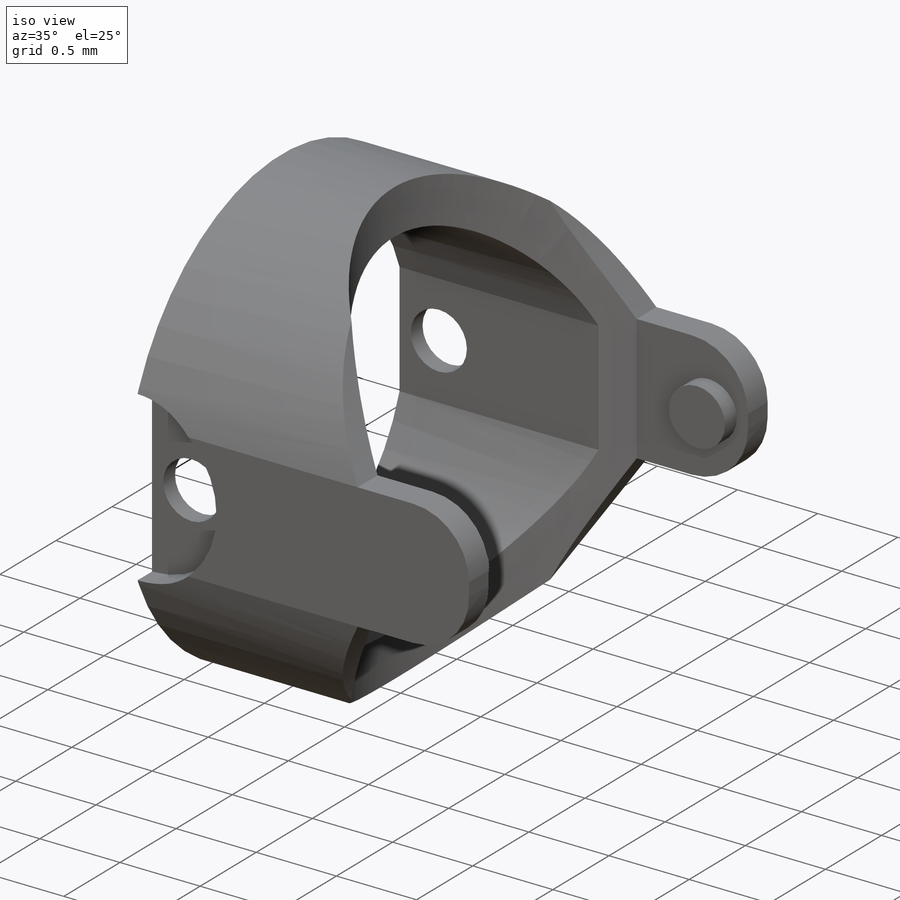
[diagram: iso view]
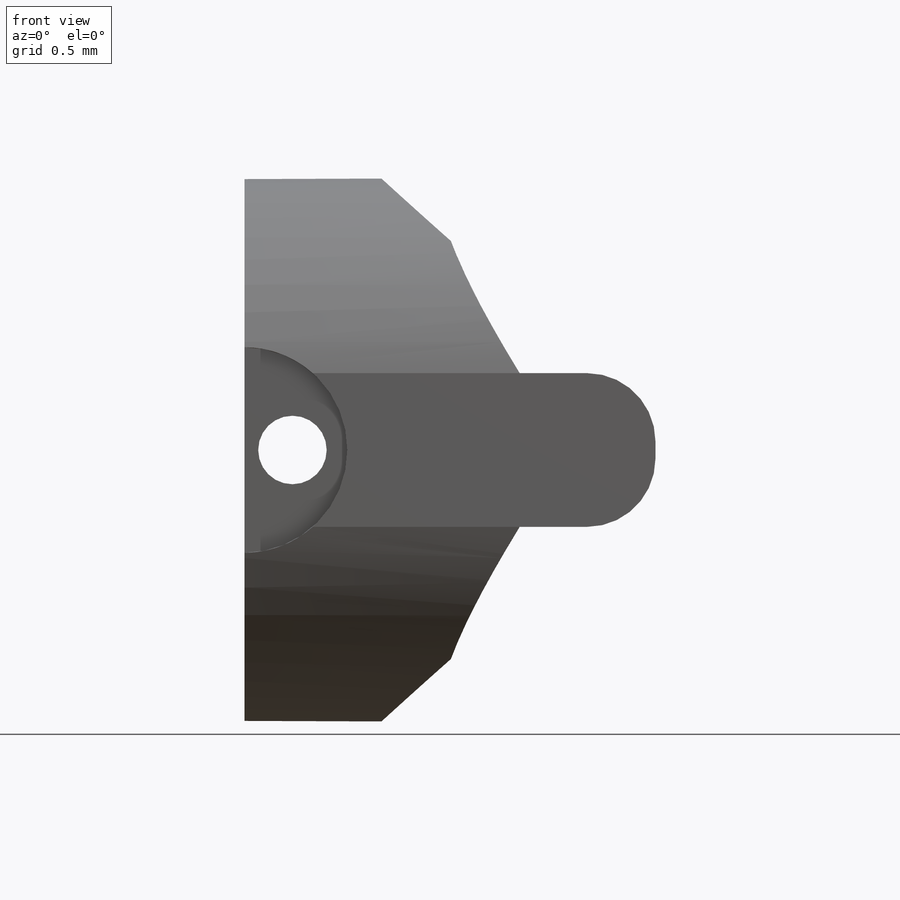
[diagram: front view]
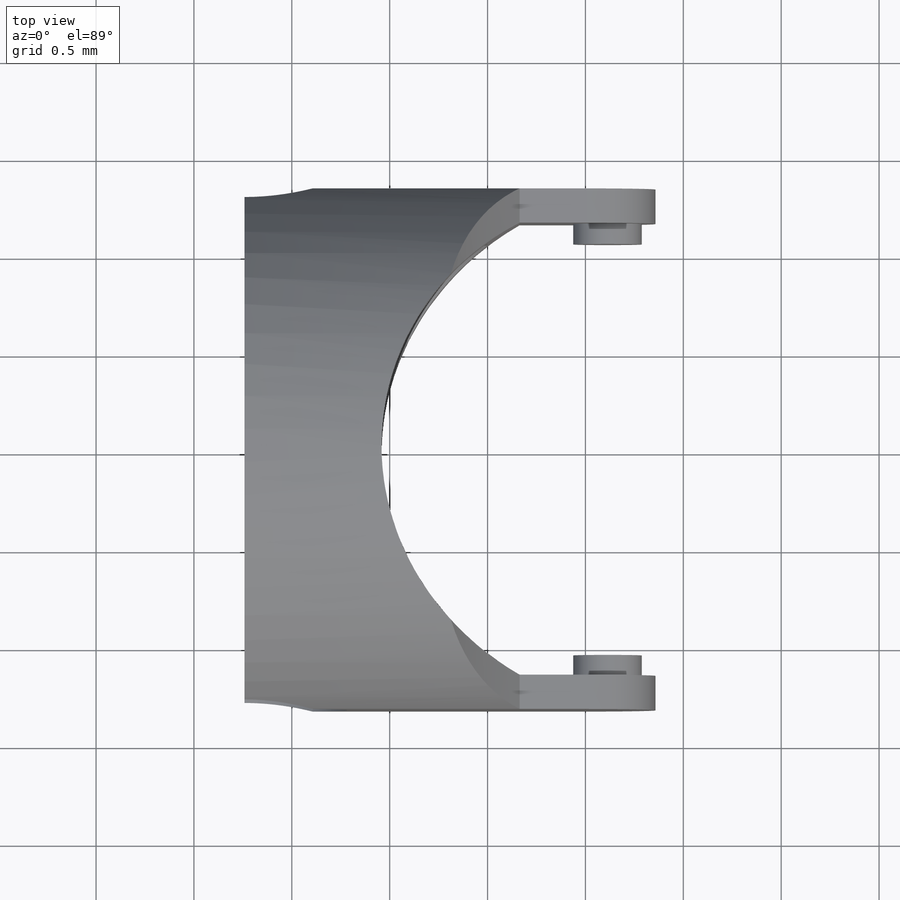
[diagram: top view]
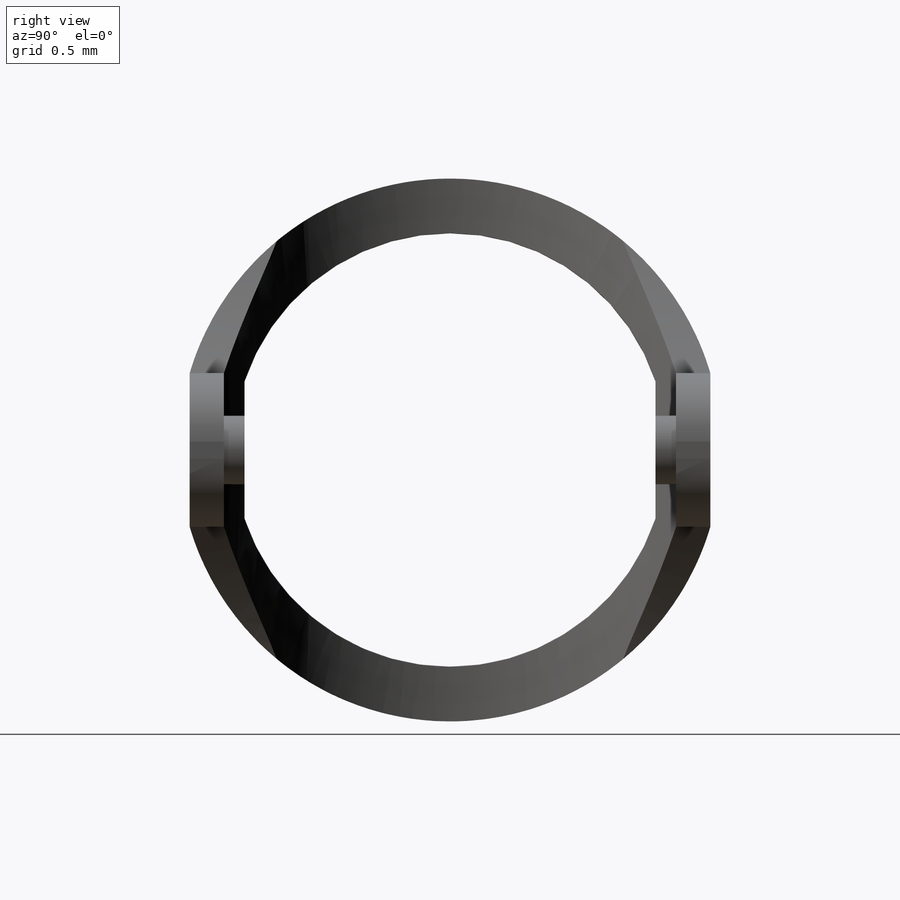
[diagram: right view]
SOLIDWORKS PART (.sldprt)
format: sldprt  version: not decoded by parser v0  size: 331,776 bytes
history: native  units: mm
features: sketch x7, cut_extrude x4, plane x3, extrude x3, fillet x3, material x1, mirror x1 (+9 scaffold rows collapsed)
feature tree (31):
  scaffold x9  (default folders/planes/origin — collapsed)
  material  "Materiał <nieokreślony>"
  plane  "Płaszczyzna przednia"
  plane  "Płaszczyzna górna"
  plane  "Płaszczyzna prawa"
  sketch  "Szkic4"  dims[D1=2.0mm D2=2.0mm D3=6.0mm D4=0.8mm]
  extrude  "Dodanie-wyciągnięcie2"  Depth=6mm
  sketch  "Szkic6"  dims[D1=4.0mm]
  cut_extrude  "Wytnij-wyciągnięcie4"  [1 undecoded]
  sketch  "Szkic10"  dims[D1=0.0mm]
  extrude  "Dodanie-wyciągnięcie5"  Depth=0.5mm
  sketch  "Szkic11"  dims[D2=2.5mm D1=0.0mm]
  cut_extrude  "Wytnij-wyciągnięcie6"  [1 undecoded]
  mirror  "Lustro2"
  fillet  "Zaokrąglenie3"  Radius=1mm
  sketch  "Szkic12"  dims[D1=1.0mm D2=0.7mm]
  sketch  "Szkic13"  dims[D3=1.0mm D1=0.25mm D2=0.25mm D4=1.4mm]
  cut_extrude  "Wytnij-wyciągnięcie8"  Depth=0.5mm
  fillet  "Lustro3"  [1 undecoded]
  sketch  "Szkic14"  dims[D1=1.0mm D2=0.7mm]
  cut_extrude  "Wytnij-wyciągnięcie9"  [1 undecoded]
  extrude  "Dodanie-wyciągnięcie6"  Depth=0.8mm
  fillet  "Lustro4"  [1 undecoded]
decode coverage: 12 of 18 modeling features carry decoded parameters
note: 5 parameter values undecoded
summary: no parameter record found for 5 features
note: suppression state not decoded; provenance and decode notes live in map.json
